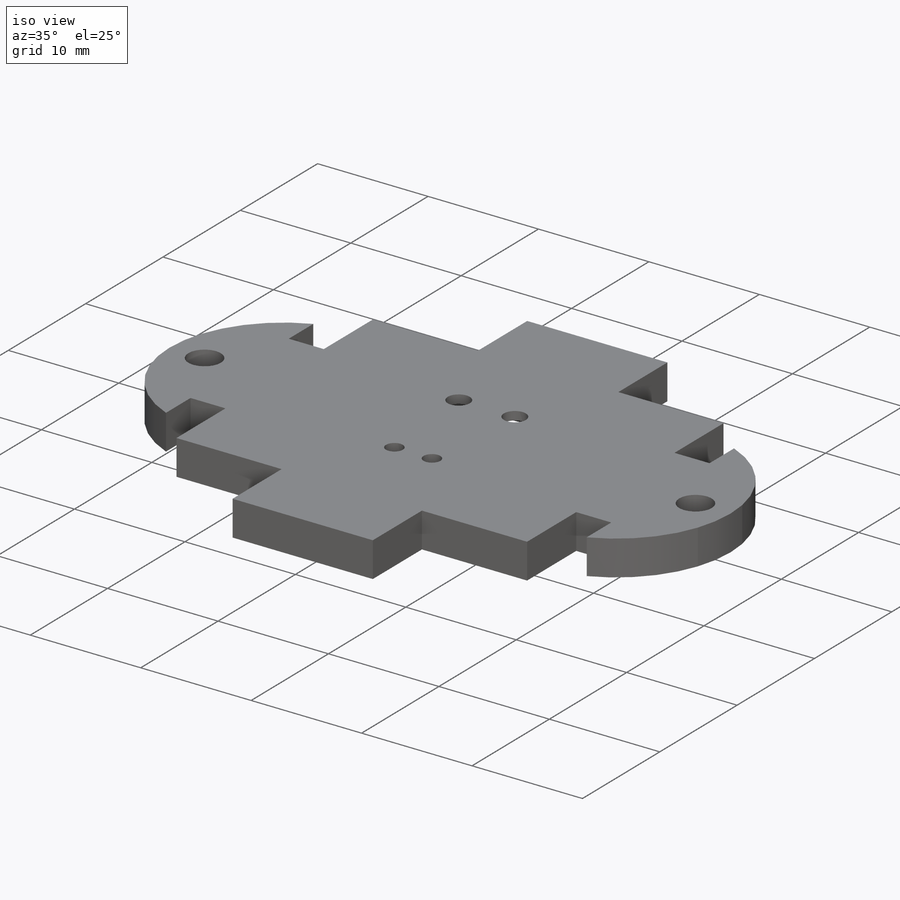
[diagram: iso view]
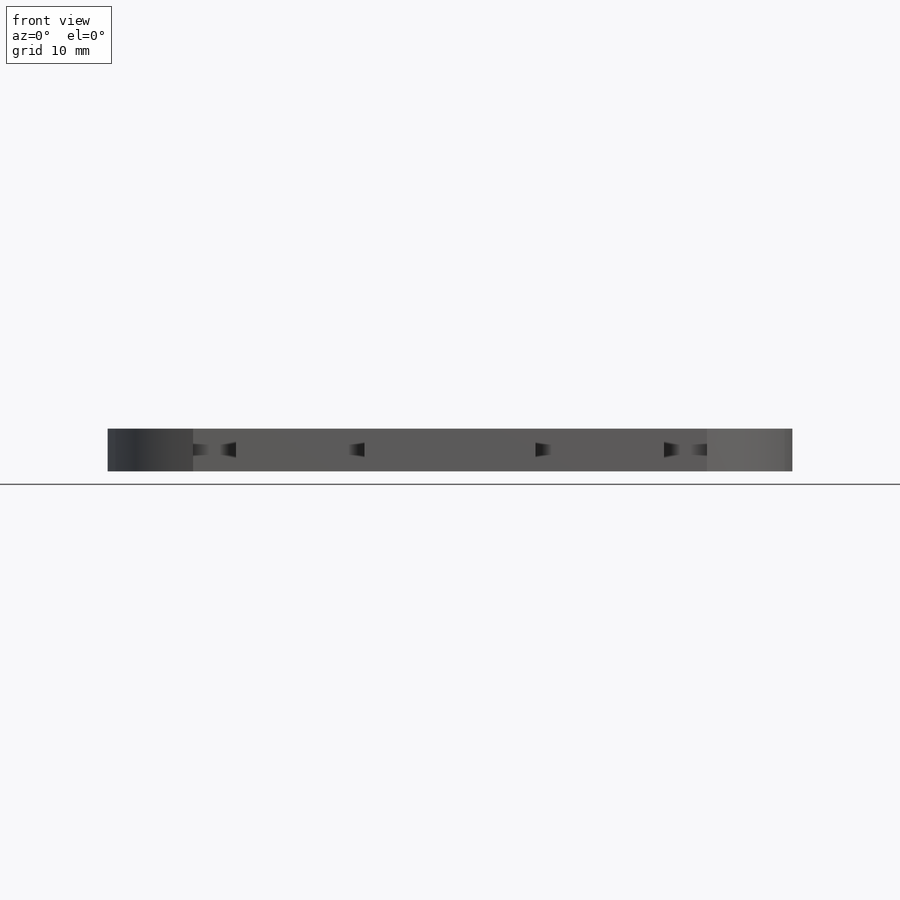
[diagram: front view]
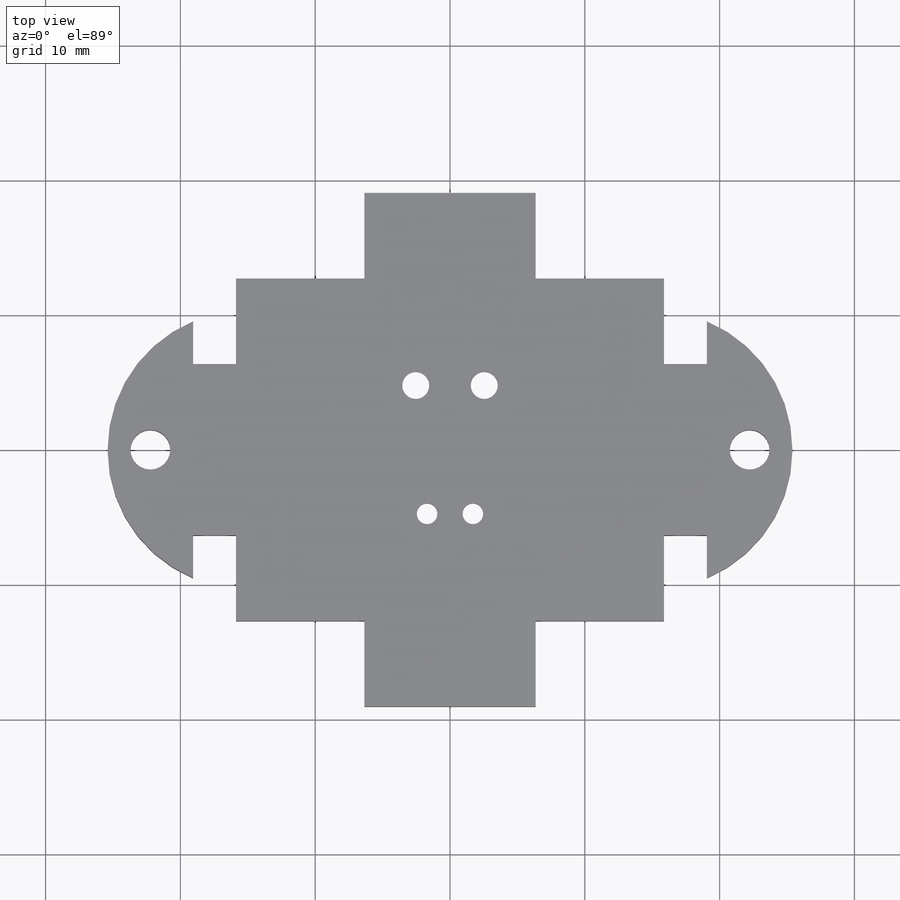
[diagram: top view]
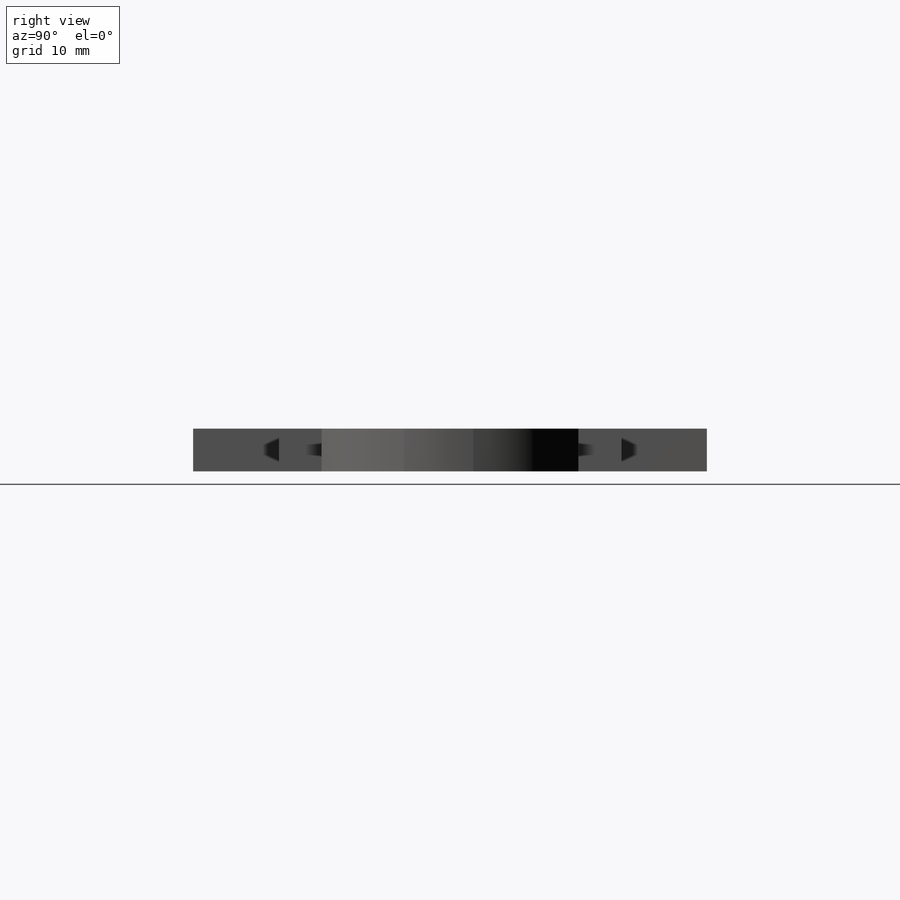
[diagram: right view]
SOLIDWORKS PART (.sldprt)
format: sldprt  version: not decoded by parser v0  size: 275,968 bytes
history: native  units: mm
features: sketch x7, cut_extrude x3, material x1, extrude x1, hole x1 + 1 further entry (+12 scaffold rows collapsed)
feature tree (26):
  scaffold x12  (default folders/planes/origin — collapsed)
  material  "Acrylic (Medium-high impact)"
  sketch  "Sketch1"  dims[c1.D3=6.35mm c1.D1=25.4mm c1.D2=31.75mm c2.D3=12.7mm c2.D4=3.175mm c2.D5=12.7mm c3.D4=3.175mm c3.D6=12.7mm c3.D7=6.35mm c3.D8=3.175mm c3.D9=19.05mm c4.D8=19.05mm]
  extrude  "Boss-Extrude1"  Depth=3.175mm
  hole  "#4 Clearance Hole1"  Diameter=2.9464mm Depth=6.35mm
  sketch  "Sketch3"  dims[D1=3.175mm]
  sketch  "Sketch2"  dims[hole-wizard template sketch: 50 standard entries collapsed; hole parameters above]
  sketch  "Sketch4"  dims[c1.D1=10.16mm c1.D2=1.524mm c1.D4=5.207mm c1.D5=10.0mm c1.D6=2.0mm c1.D3=3.4mm c2.D5=9.525mm c2.D7=5.08mm]
  cut_extrude  "Cut-Extrude3"  [1 undecoded]
  cut_extrude  "Cut-Extrude4"  [1 undecoded]
  sketch  "Sketch4<3>"  dims[D1=2.4mm]
  sketch  "Sketch5"  dims[D1=1.27mm]
  sketch  "Sketch6"  dims[D1=1.27mm]
  cut_extrude  "Cut-Extrude6"  [1 undecoded]
  "Sketch-Pattern1"
decode coverage: 9 of 12 modeling features carry decoded parameters; 1 rows unclassified (native names shown)
note: ~ marks probable driven/reference dimensions
note: 3 parameter values undecoded
summary: no parameter record found for 3 features
note: suppression state not decoded; provenance and decode notes live in map.json
